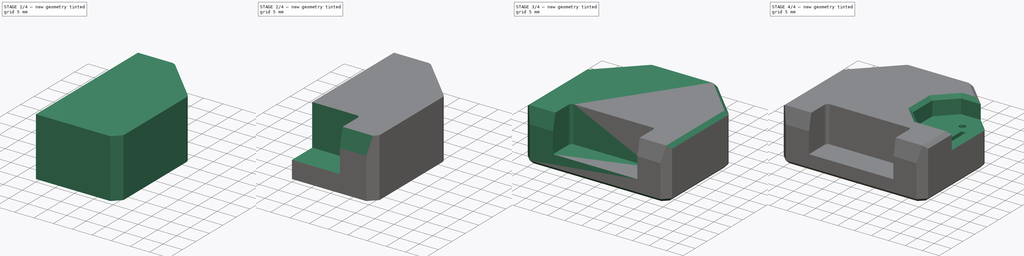
[diagram: build sequence overview — one tinted view per stage of 4, left to right]
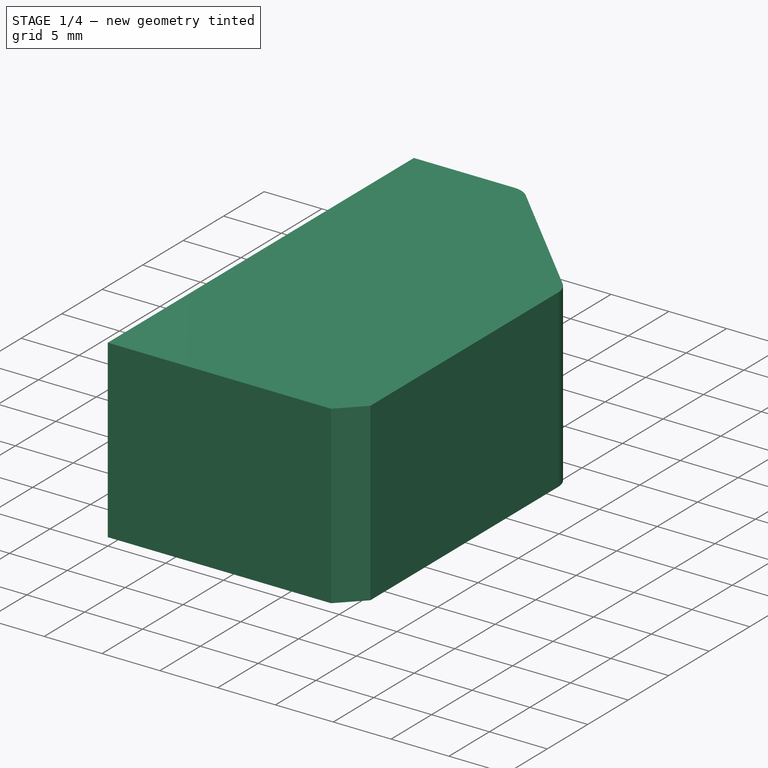
[diagram: stage 1 of 4 — iso view after this stage's code; geometry added in this stage tinted green]
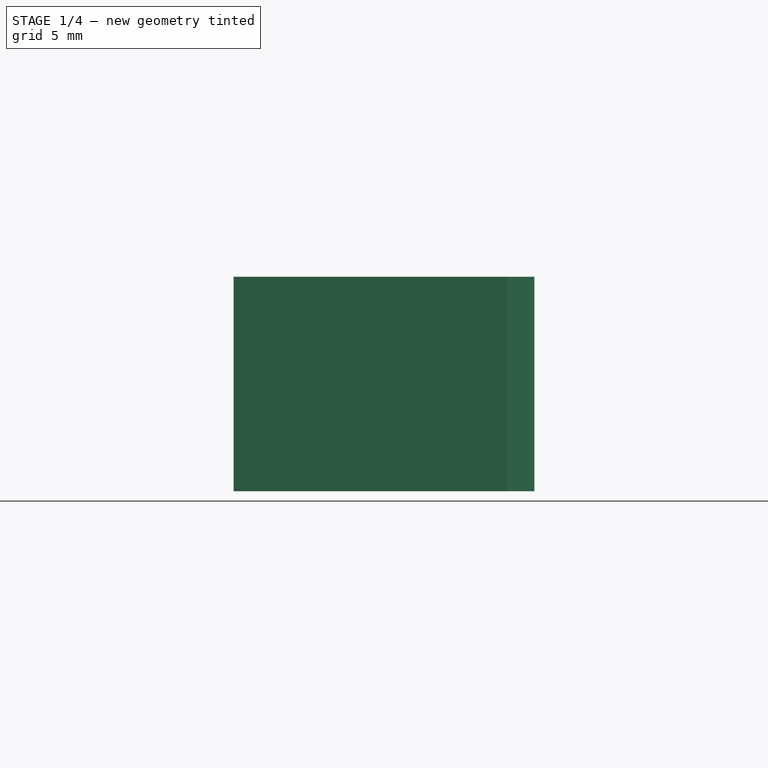
[diagram: stage 1 of 4 — front view after this stage's code; geometry added in this stage tinted green]
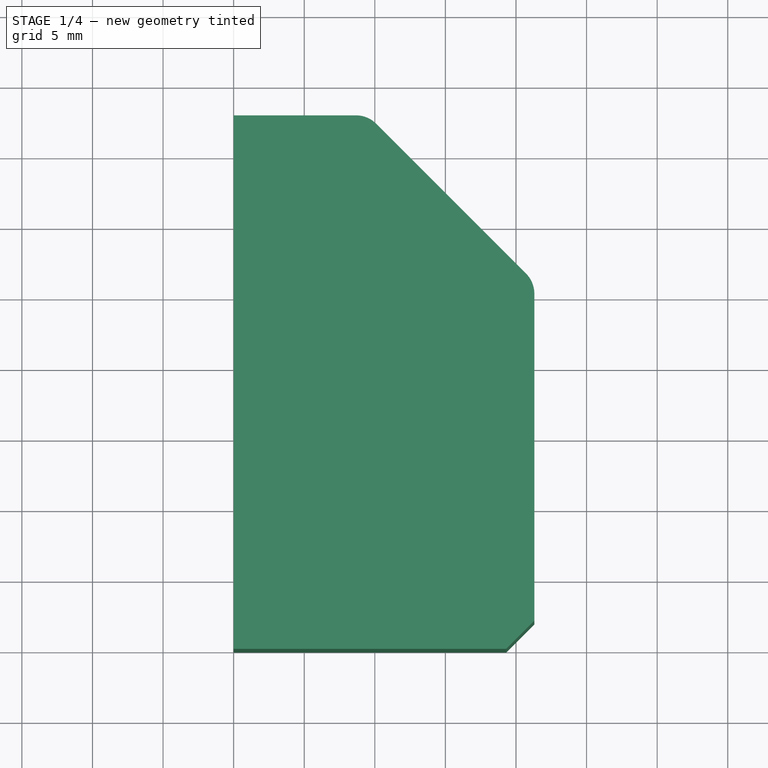
[diagram: stage 1 of 4 — top view after this stage's code; geometry added in this stage tinted green]
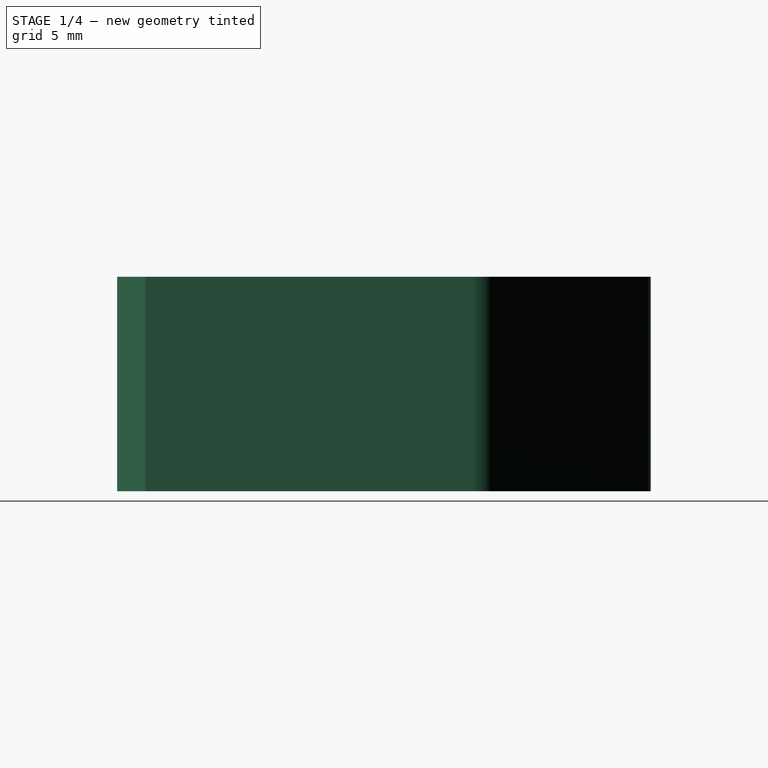
[diagram: stage 1 of 4 — right view after this stage's code; geometry added in this stage tinted green]
FCSTD DOCUMENT  (FreeCAD 1.0R38641 +468 (Git))
Label: ShellyDimmerGen1
License: All rights reserved
LicenseURL: http://en.wikipedia.org/wiki/All_rights_reserved
objects: Sketcher::SketchObject×4, PartDesign::Chamfer×4, PartDesign::Pocket×3, PartDesign::Fillet×2, PartDesign::Pad×1, PartDesign::Mirrored×1, PartDesign::Body×1
note: 41 computed .brp shape members not serialized (recipe doc carries the construction recipe); baked Part::Feature solids carry a one-line shape summary decoded from their .brp

FEATURE [Sketcher::SketchObject] Sketch
  ArcFitTolerance = 1e-06
  AttachmentSupport = -> [XY_Plane]
  FullyConstrained = true
  MakeInternals = false
  MapMode = 5
  expr: Constraints[10] = 42.6 / 2
  expr: Constraints[13] = 19 / 2
  sketch-geometry (5):
    g0: LineSegment StartX=0 StartY=0 StartZ=0 EndX=21.3 EndY=0 EndZ=0
    g1: LineSegment StartX=21.3 StartY=0 StartZ=0 EndX=21.3 EndY=26 EndZ=0
    g2: LineSegment StartX=0 StartY=0 StartZ=0 EndX=0 EndY=37.8 EndZ=0
    g3: LineSegment StartX=0 StartY=37.8 StartZ=0 EndX=9.5 EndY=37.8 EndZ=0
    g4: LineSegment StartX=9.5 StartY=37.8 StartZ=0 EndX=21.3 EndY=26 EndZ=0
  constraints (14):
    c: PointOnObject(g0,g-1)
    c: Coincident(g1,g0)
    c: Coincident(g0,g-1)
    c: Coincident(g2,g0)
    c: PointOnObject(g2,g-2)
    c: Coincident(g3,g2)
    c: Horizontal(g3)
    c: Coincident(g4,g3)
    c: Coincident(g4,g1)
    c: Perpendicular(g1,g0)
    c: DistanceX(g0,g0) = 21.3
    c: DistanceY(g2,g2) = 37.8
    c: DistanceY(g1,g1) = 26
    c: DistanceX(g3,g3) = 9.5
FEATURE [PartDesign::Pad] Pad
  Direction = (0,0,1)
  Length = 15.2
  Length2 = 10
  Profile = -> Sketch
  ReferenceAxis = -> Sketch [N_Axis]
  Refine = true
  Suppressed = false
  Type = 0
FEATURE [PartDesign::Chamfer] Chamfer
  Angle = 45
  Base = -> Pad [Edge2]
  BaseFeature = -> Pad
  ChamferType = 0
  FlipDirection = false
  Refine = true
  Size = 2
  Size2 = 1
  SupportTransform = false
  Suppressed = false
  UseAllEdges = false
FEATURE [PartDesign::Fillet] Fillet
  Base = -> Chamfer [Edge17,Edge18]
  BaseFeature = -> Chamfer
  Radius = 2
  Refine = true
  SupportTransform = false
  Suppressed = false
  UseAllEdges = false
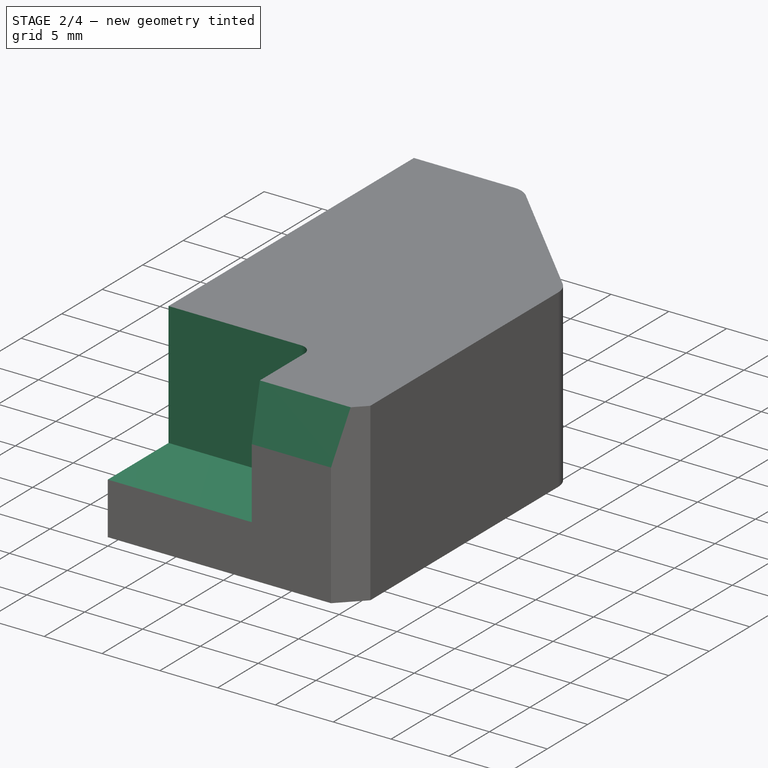
[diagram: stage 2 of 4 — iso view after this stage's code; geometry added in this stage tinted green]
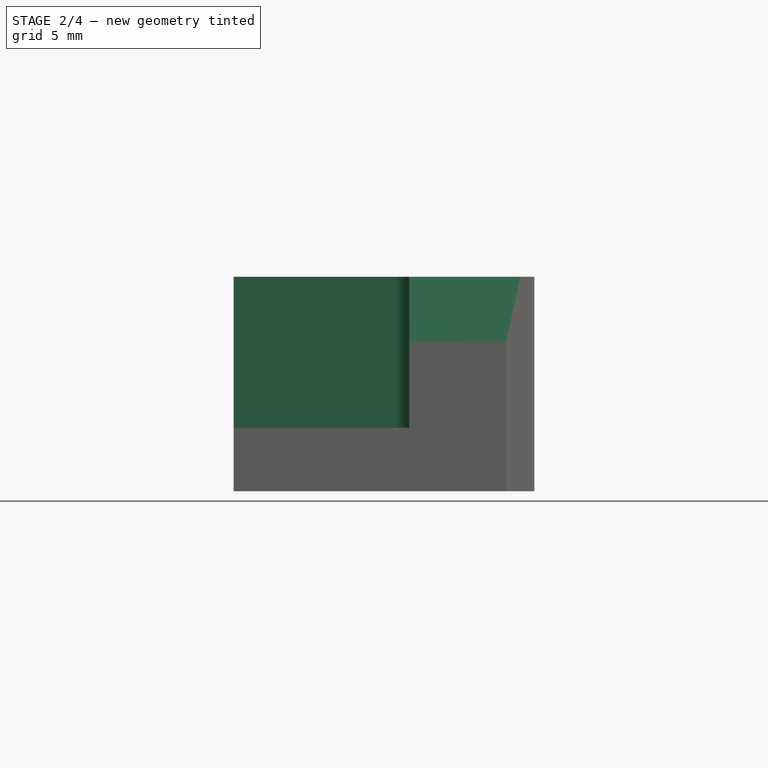
[diagram: stage 2 of 4 — front view after this stage's code; geometry added in this stage tinted green]
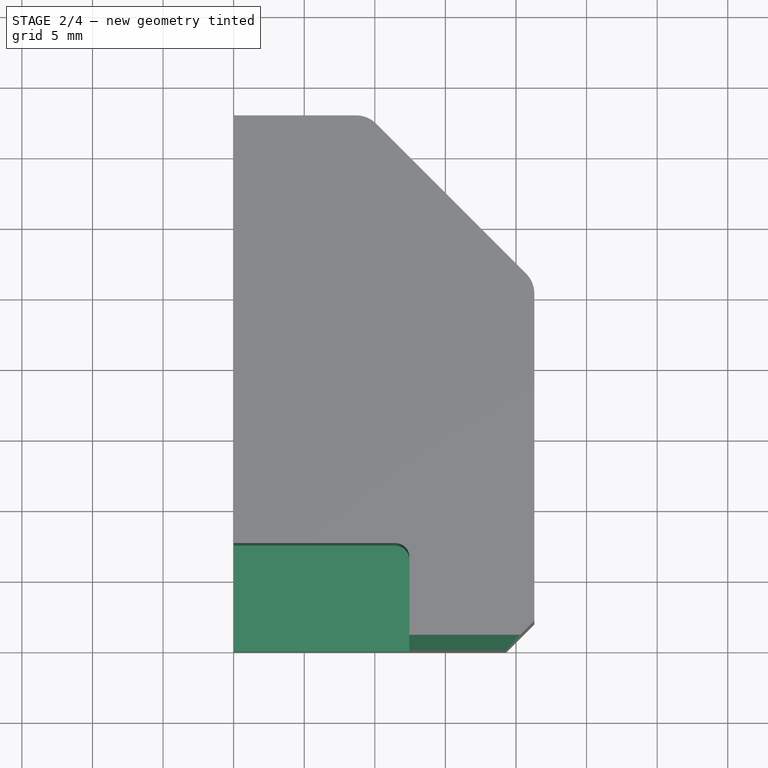
[diagram: stage 2 of 4 — top view after this stage's code; geometry added in this stage tinted green]
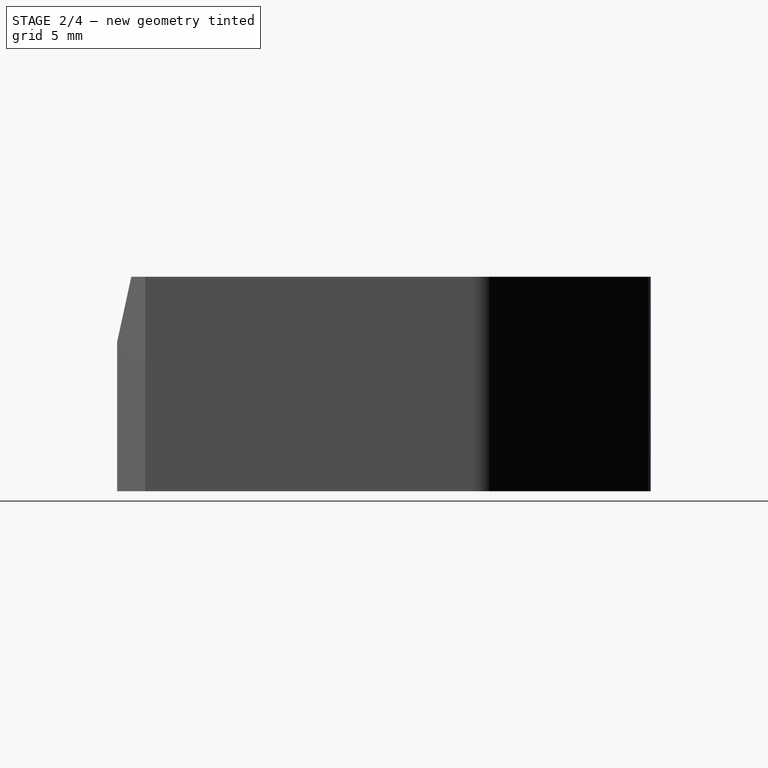
[diagram: stage 2 of 4 — right view after this stage's code; geometry added in this stage tinted green]
FEATURE [Sketcher::SketchObject] Sketch001
  ArcFitTolerance = 1e-06
  AttachmentSupport = -> [Fillet]
  ExternalGeometry = -> [Fillet]
  FullyConstrained = true
  MakeInternals = false
  MapMode = 5
  Placement = pos=(0,0,0) rot=(1,0,0;1.5708rad)
  expr: Constraints[10] = 24.9 / 2
  sketch-geometry (4):
    g0: LineSegment StartX=0 StartY=15.2 StartZ=0 EndX=0 EndY=4.5 EndZ=0
    g1: LineSegment StartX=0 StartY=4.5 StartZ=0 EndX=12.45 EndY=4.5 EndZ=0
    g2: LineSegment StartX=12.45 StartY=4.5 StartZ=0 EndX=12.45 EndY=15.2 EndZ=0
    g3: LineSegment StartX=12.45 StartY=15.2 StartZ=0 EndX=0 EndY=15.2 EndZ=0
  constraints (11):
    c: Coincident(g0,g1)
    c: Coincident(g1,g2)
    c: Coincident(g2,g3)
    c: Coincident(g3,g0)
    c: Vertical(g0)
    c: Vertical(g2)
    c: Horizontal(g1)
    c: Horizontal(g3)
    c: Coincident(g0,g-3)
    c: DistanceY(g-1,g0) = 4.5
    c: DistanceX(g3,g3) = 12.45
FEATURE [PartDesign::Pocket] Pocket
  BaseFeature = -> Fillet
  Direction = (0,1,-2e-16)
  Length = 7.5
  Length2 = 5
  Profile = -> Sketch001
  ReferenceAxis = -> Sketch001 [N_Axis]
  Refine = true
  Suppressed = false
  Type = 0
FEATURE [PartDesign::Fillet] Fillet001
  Base = -> Pocket [Edge32]
  BaseFeature = -> Pocket
  Radius = 1
  Refine = true
  SupportTransform = false
  Suppressed = false
  UseAllEdges = false
FEATURE [PartDesign::Chamfer] Chamfer001
  Angle = 45
  Base = -> Fillet001 [Edge3]
  BaseFeature = -> Fillet001
  ChamferType = 1
  FlipDirection = false
  Refine = true
  Size = 1
  Size2 = 4.6
  SupportTransform = false
  Suppressed = false
  UseAllEdges = false
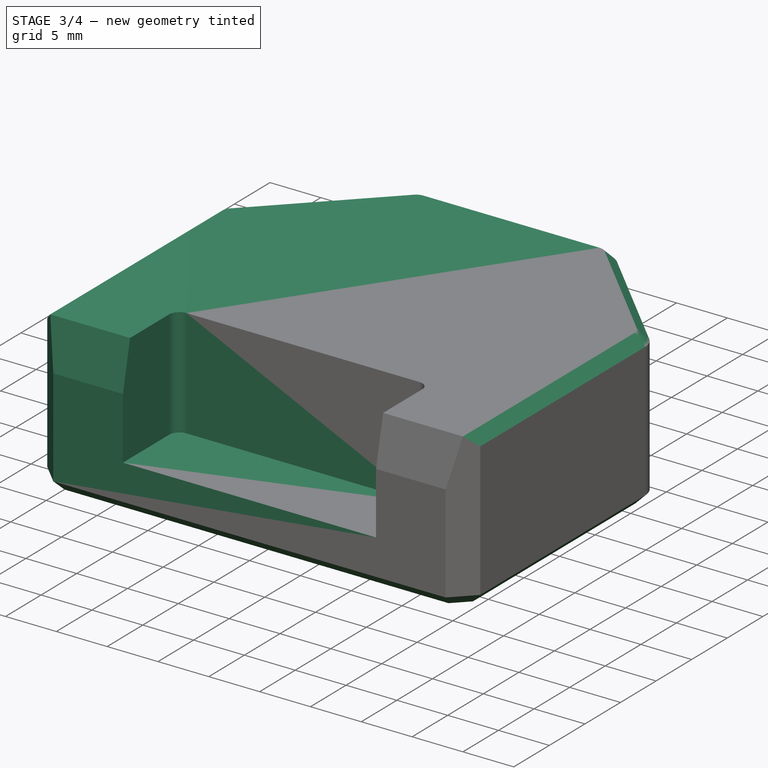
[diagram: stage 3 of 4 — iso view after this stage's code; geometry added in this stage tinted green]
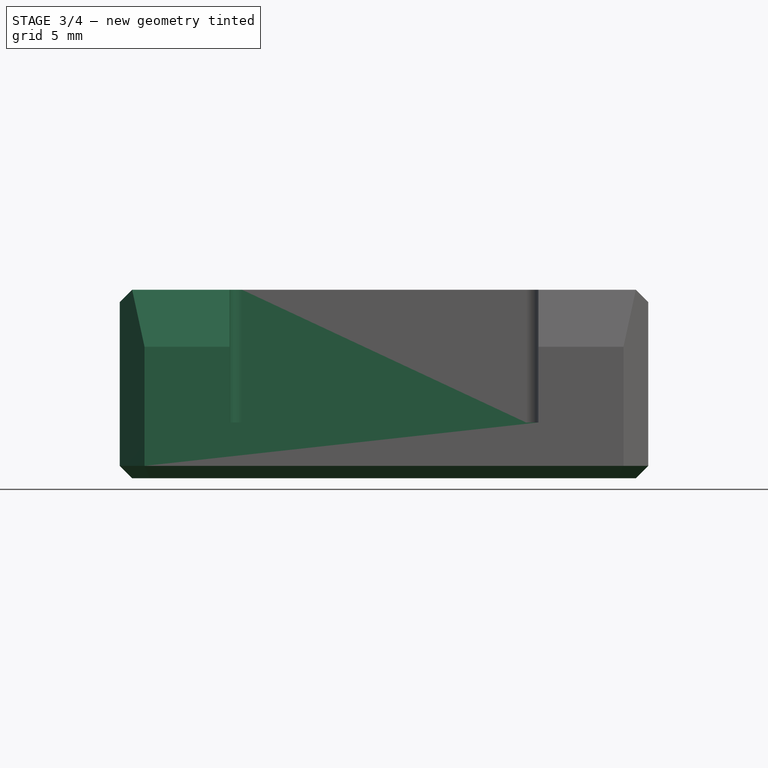
[diagram: stage 3 of 4 — front view after this stage's code; geometry added in this stage tinted green]
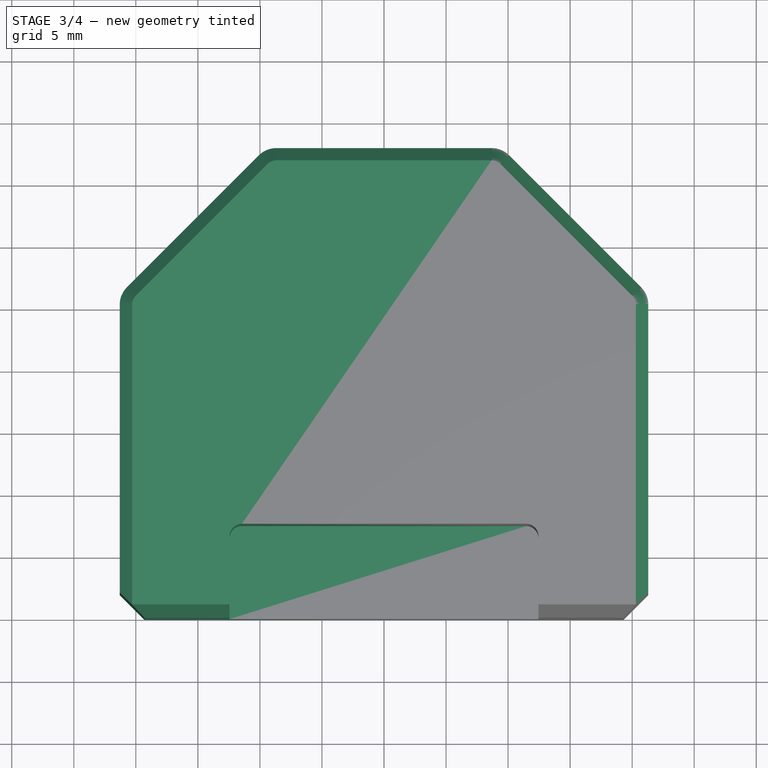
[diagram: stage 3 of 4 — top view after this stage's code; geometry added in this stage tinted green]
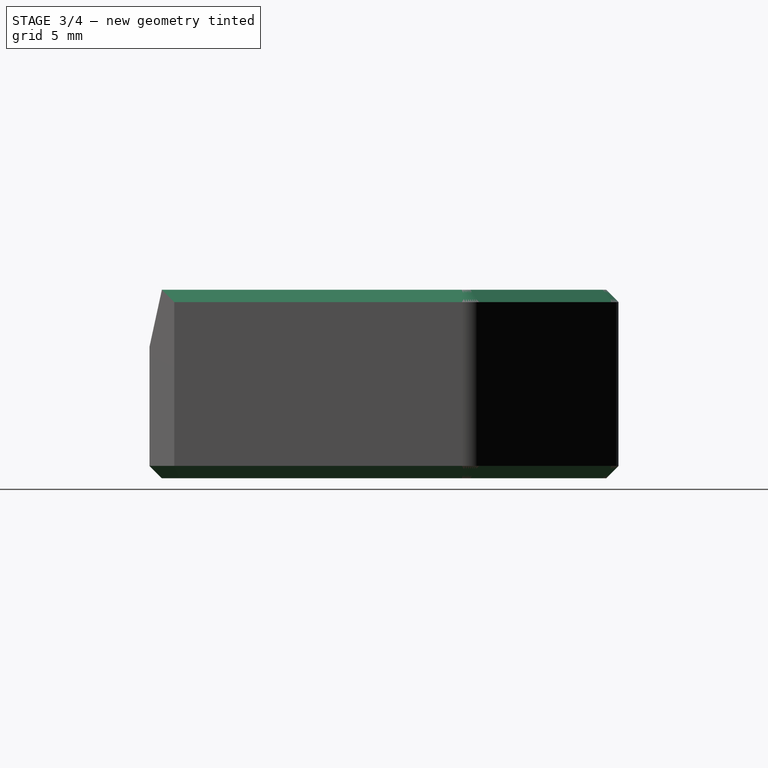
[diagram: stage 3 of 4 — right view after this stage's code; geometry added in this stage tinted green]
FEATURE [PartDesign::Chamfer] Chamfer002
  Angle = 45
  Base = -> Chamfer001 [Edge6,Edge8,Edge10,Edge11,Edge9,Edge38,Edge21,Edge25,Edge31,Edge35,Edge37,Edge33]
  BaseFeature = -> Chamfer001
  ChamferType = 0
  FlipDirection = false
  Refine = true
  Size = 1
  Size2 = 1
  SupportTransform = false
  Suppressed = false
  UseAllEdges = false
FEATURE [PartDesign::Mirrored] Mirrored
  BaseFeature = -> Chamfer002
  MirrorPlane = -> Sketch [V_Axis]
  Originals = -> [Pad,Chamfer,Fillet,Pocket,Fillet001,Chamfer001,Chamfer002]
  Refine = true
  Suppressed = false
  TransformMode = 0
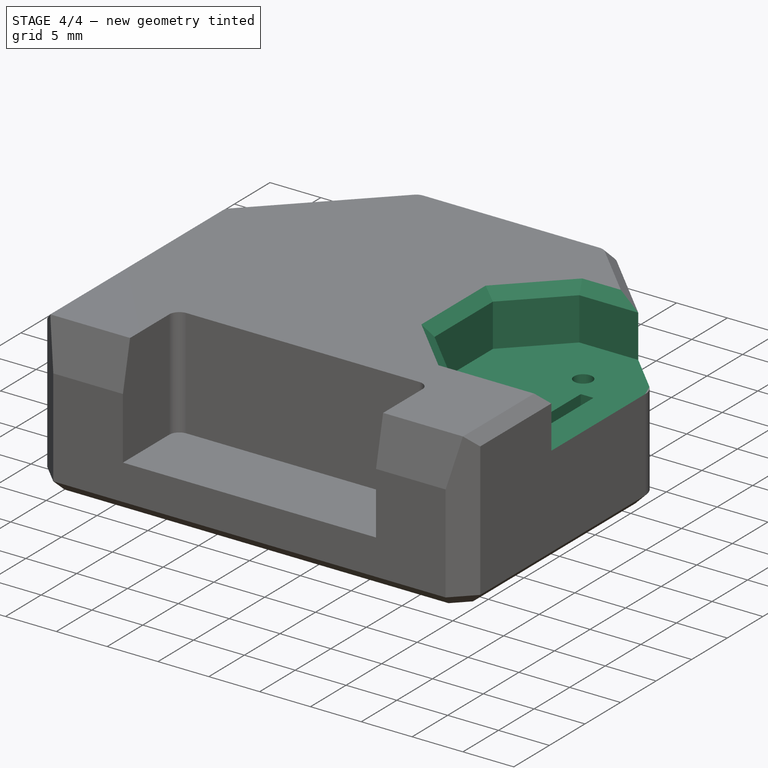
[diagram: stage 4 of 4 — iso view after this stage's code; geometry added in this stage tinted green]
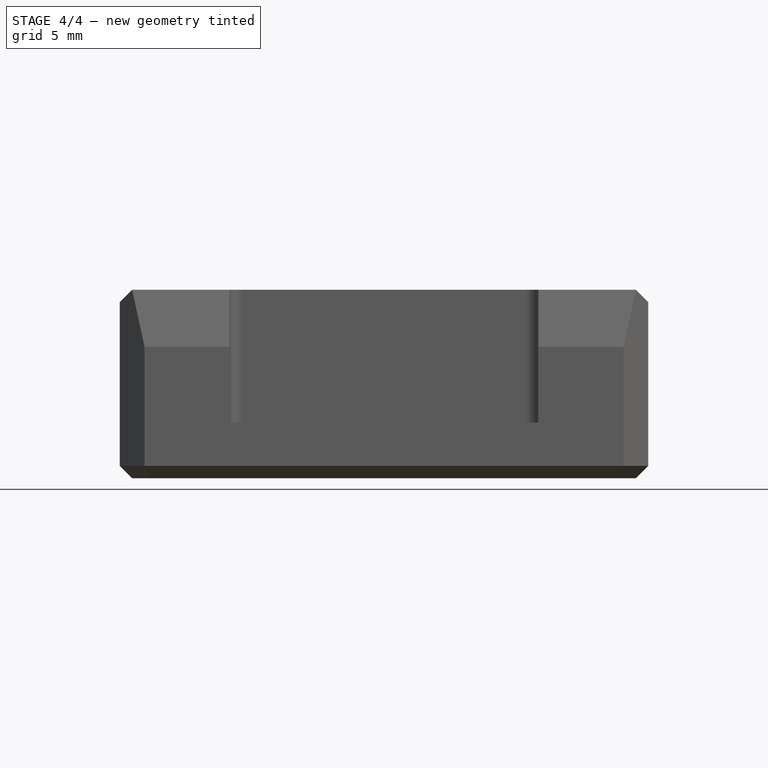
[diagram: stage 4 of 4 — front view after this stage's code; geometry added in this stage tinted green]
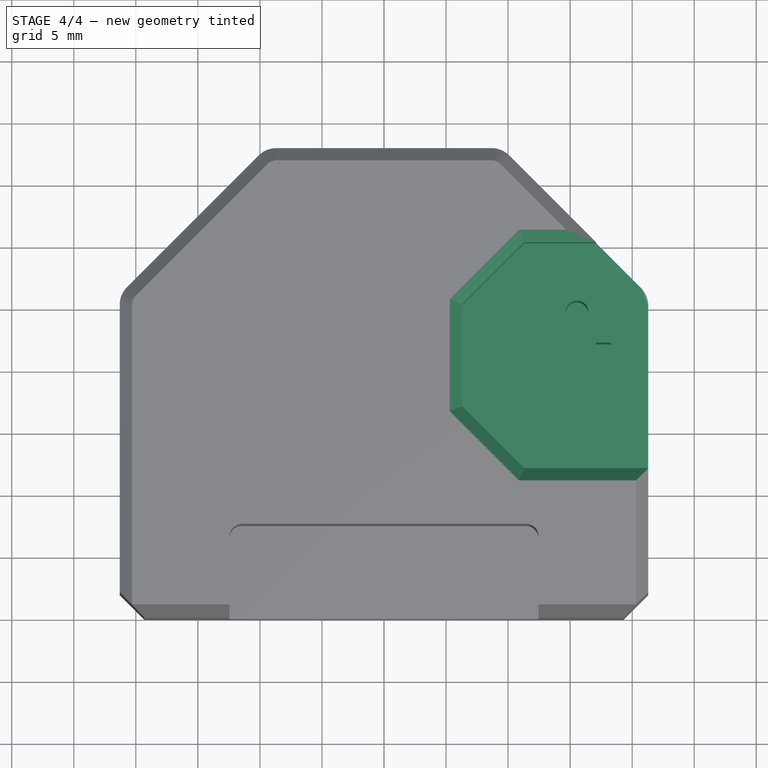
[diagram: stage 4 of 4 — top view after this stage's code; geometry added in this stage tinted green]
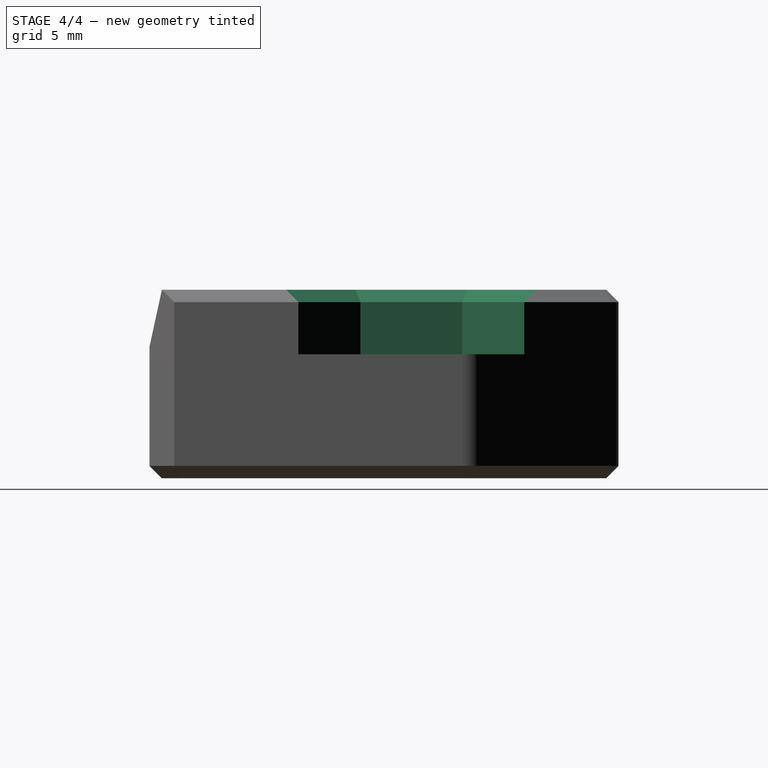
[diagram: stage 4 of 4 — right view after this stage's code; geometry added in this stage tinted green]
FEATURE [Sketcher::SketchObject] Sketch002
  ArcFitTolerance = 1e-06
  AttachmentSupport = -> [Mirrored]
  ExternalGeometry = -> [Mirrored]
  FullyConstrained = true
  MakeInternals = false
  MapMode = 5
  Placement = pos=(0,0,15.2) rot=(0,0,1;0rad)
  sketch-geometry (6):
    g0: LineSegment StartX=21.3 StartY=12 StartZ=0 EndX=11.3 EndY=12 EndZ=0
    g1: LineSegment StartX=11.3 StartY=12 StartZ=0 EndX=6.3 EndY=17 EndZ=0
    g2: LineSegment StartX=6.3 StartY=17 StartZ=0 EndX=6.3 EndY=25.2 EndZ=0
    g3: LineSegment StartX=6.3 StartY=25.2 StartZ=0 EndX=11.3 EndY=30.2 EndZ=0
    g4: LineSegment StartX=11.3 StartY=30.2 StartZ=0 EndX=21.3 EndY=30.2 EndZ=0
    g5: LineSegment StartX=21.3 StartY=30.2 StartZ=0 EndX=21.3 EndY=12 EndZ=0
  constraints (18):
    c: Coincident(g1,g0)
    c: Coincident(g2,g1)
    c: Vertical(g2)
    c: Coincident(g3,g2)
    c: Coincident(g4,g3)
    c: Horizontal(g4)
    c: Coincident(g5,g4)
    c: Coincident(g5,g0)
    c: Horizontal(g0)
    c: PointOnObject(g0,g-3)
    c: PointOnObject(g4,g-3)
    c: DistanceY(g-4,g0) = 12
    c: DistanceY(g5,g5) = 18.2
    c: DistanceX(g1,g0) = 15
    c: Angle(g0,g1) = 2.35619
    c: Angle(g3,g4) = 2.35619
    c: DistanceX(g0,g0) = 10
    c: Equal(g0,g4)
FEATURE [PartDesign::Pocket] Pocket001
  BaseFeature = -> Mirrored
  Direction = (0,0,-1)
  Length = 0
  Length2 = 5
  Offset = -10
  Profile = -> Sketch002
  ReferenceAxis = -> Sketch002 [N_Axis]
  Refine = true
  Suppressed = false
  Type = 3
  UpToFace = -> Mirrored [Face43]
FEATURE [PartDesign::Chamfer] Chamfer003
  Angle = 45
  Base = -> Pocket001 [Edge14,Edge13,Edge12,Edge11,Edge10]
  BaseFeature = -> Pocket001
  ChamferType = 0
  FlipDirection = false
  Refine = true
  Size = 1
  Size2 = 1
  SupportTransform = false
  Suppressed = false
  UseAllEdges = false
FEATURE [Sketcher::SketchObject] Sketch003
  ArcFitTolerance = 1e-06
  AttachmentSupport = -> [Chamfer003]
  ExternalGeometry = -> [Chamfer003]
  FullyConstrained = true
  MakeInternals = false
  MapMode = 5
  Placement = pos=(0,0,10) rot=(0,0,1;0rad)
  sketch-geometry (5):
    g0: LineSegment StartX=17.05 StartY=22.2 StartZ=0 EndX=17.05 EndY=15 EndZ=0
    g1: LineSegment StartX=17.05 StartY=15 StartZ=0 EndX=18.3 EndY=15 EndZ=0
    g2: LineSegment StartX=18.3 StartY=15 StartZ=0 EndX=18.3 EndY=22.2 EndZ=0
    g3: LineSegment StartX=18.3 StartY=22.2 StartZ=0 EndX=17.05 EndY=22.2 EndZ=0
    g4: Circle CenterX=15.55 CenterY=24.6819 CenterZ=0 NormalX=0 NormalY=0 NormalZ=1 AngleXU=0 Radius=0.9
  constraints (15):
    c: Coincident(g0,g1)
    c: Coincident(g1,g2)
    c: Coincident(g2,g3)
    c: Coincident(g3,g0)
    c: Vertical(g0)
    c: Vertical(g2)
    c: Horizontal(g1)
    c: Horizontal(g3)
    c: Diameter(g4) = 1.8
    c: DistanceY(g0,g0) = 7.2
    c: DistanceX(g3,g3) = 1.25
    c: Distance(g1,g-3) = 3
    c: DistanceY(g-3,g1) = 3
    c: Distance(g0,g4) = 2
    c: Distance(g4,g0) = 0.6
FEATURE [PartDesign::Pocket] Pocket002
  BaseFeature = -> Chamfer003
  Direction = (0,0,-1)
  Length = 0
  Length2 = 5
  Offset = -1
  Profile = -> Sketch003
  ReferenceAxis = -> Sketch003 [N_Axis]
  Refine = true
  Suppressed = false
  Type = 3
  UpToFace = -> Chamfer003 [Face53]
FEATURE [PartDesign::Body] Body  label="ShellyDimmerGen1"
  AllowCompound = false
  Group = -> [Sketch,Pad,Chamfer,Fillet,Sketch001,Pocket,Fillet001,Chamfer001,Chamfer002,Mirrored,Sketch002,Pocket001,Chamfer003,Sketch003,Pocket002]
  Origin = -> Origin
  Tip = -> Pocket002
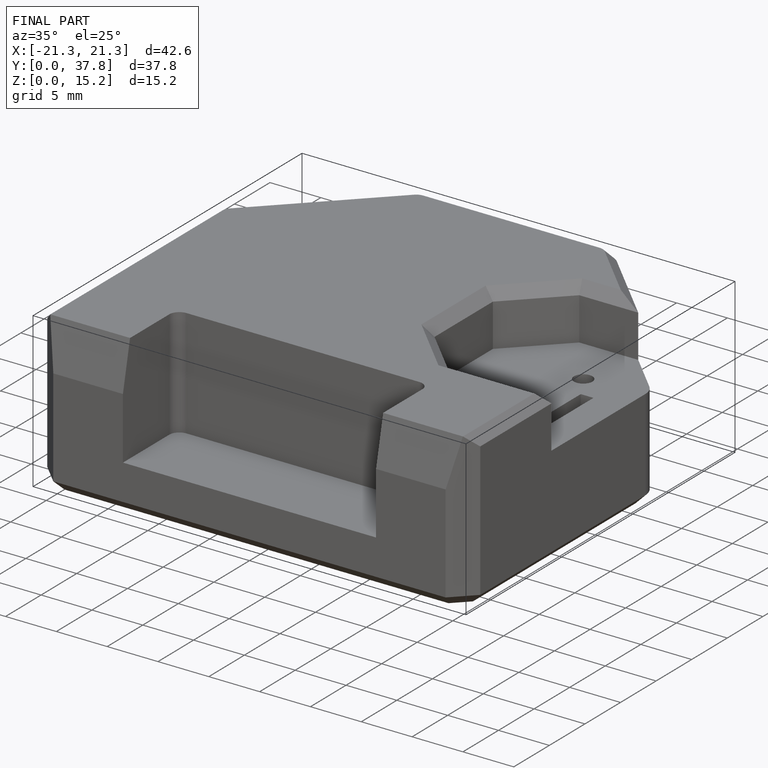
[diagram: finished part — iso view with bounding-box wireframe]
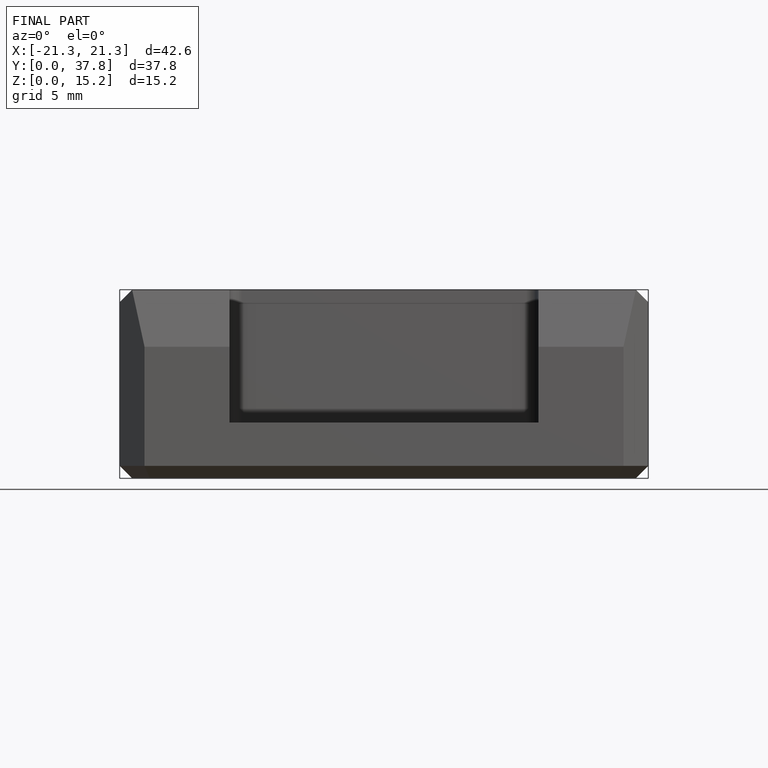
[diagram: finished part — front view with bounding-box wireframe]
